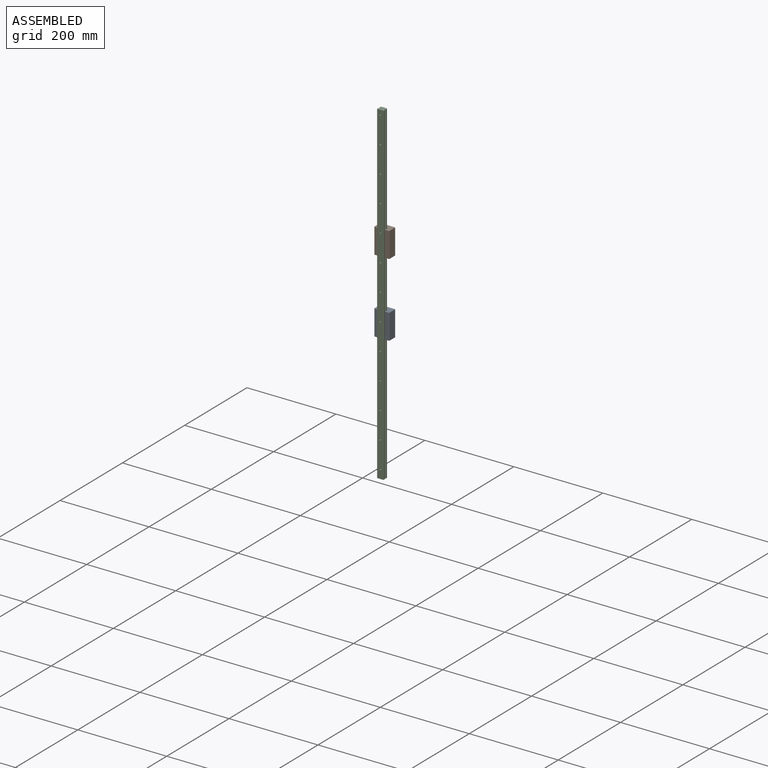
[diagram: assembled view]
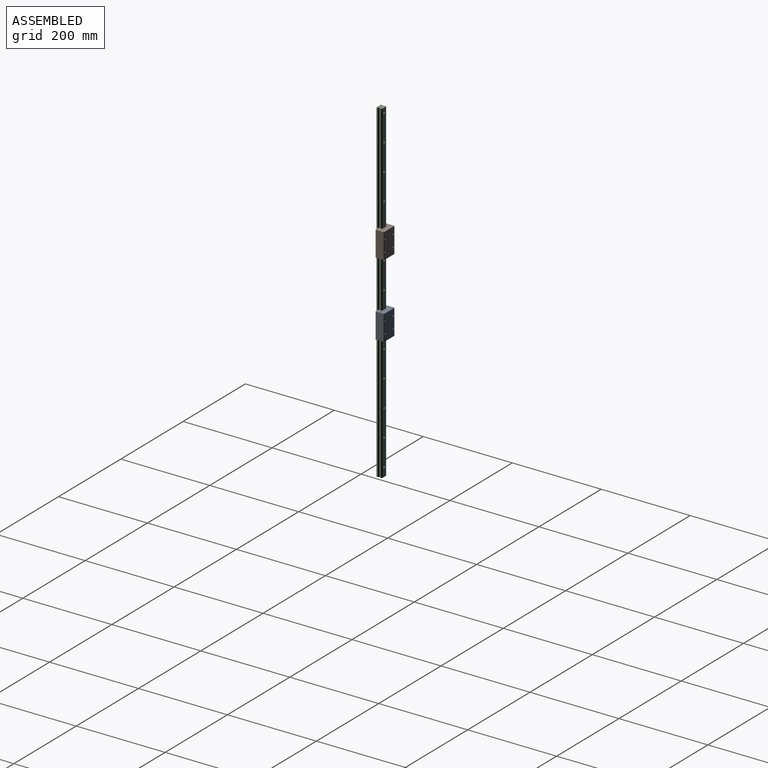
[diagram: assembled view, second angle]
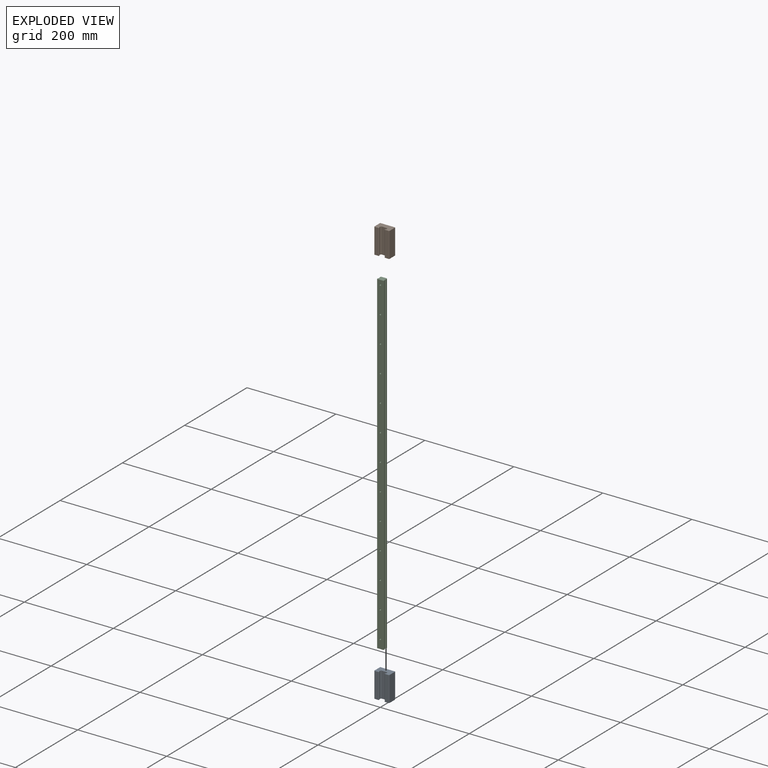
[diagram: exploded view]
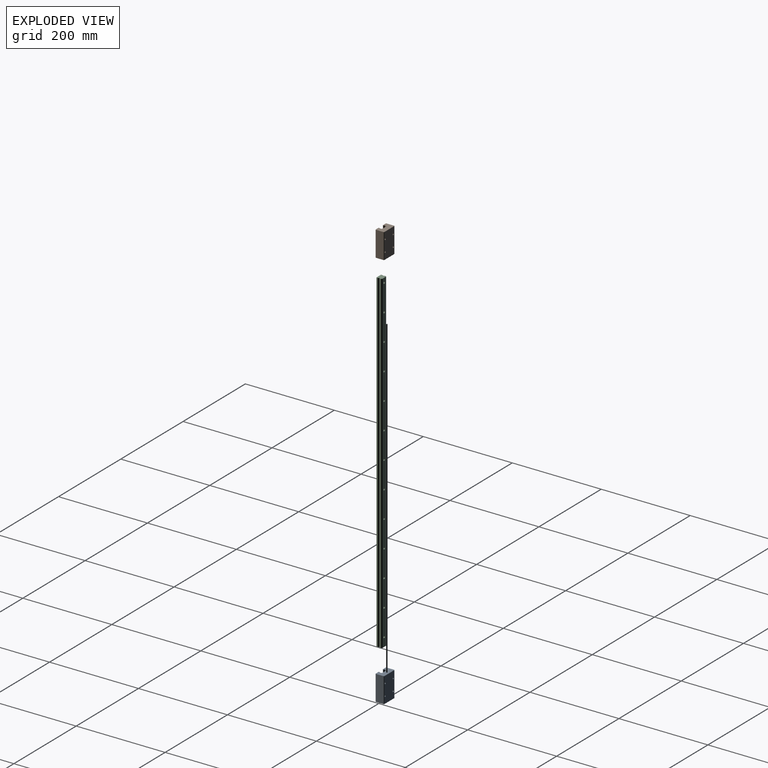
[diagram: exploded view, second angle]
ASSEMBLY  parts=3 mates=2
PART A: 37 faces, bbox 34x19.5x56.8 mm
  f0: cylinder r=1.25mm len=56.8mm, axis (0,0,-1), area 111.5mm2, adj f1,f22,f23,f24
  f1: plane 56.8x1.1mm, normal (0.71,0.71,0), area 88.2mm2, adj f0,f2,f23,f24
  f2: cylinder r=0.12mm len=56.8mm, axis (0,0,-1), area 5.4mm2, adj f1,f3,f23,f24
  f3: plane 56.8x3.04mm, normal (1,0,0), area 172.4mm2, adj f2,f4,f23,f24
  f4: plane 56.8x1.65mm, normal (0.71,-0.71,0), area 132.3mm2, adj f3,f5,f23,f24
  f5: plane 56.8x12.21mm, normal (0,-1,0), area 693.4mm2, adj f4,f6,f23,f24
  f6: plane 56.8x1.65mm, normal (-0.71,-0.71,0), area 132.3mm2, adj f5,f7,f23,f24
  f7: plane 56.8x3.04mm, normal (-1,0,0), area 172.4mm2, adj f6,f8,f23,f24
  f8: cylinder r=0.12mm len=56.8mm, axis (0,0,-1), area 5.4mm2, adj f7,f9,f23,f24
  f9: plane 56.8x1.1mm, normal (-0.71,0.71,0), area 88.2mm2, adj f8,f10,f23,f24
  f10: cylinder r=1.25mm len=56.8mm, axis (0,0,-1), area 111.5mm2, adj f9,f11,f23,f24
  f11: plane 56.8x0.59mm, normal (-0.71,-0.71,0), area 47.1mm2, adj f10,f12,f23,f24
  f12: cylinder r=1.5mm len=56.8mm, axis (0,0,-1), area 1.4mm2, adj f11,f13,f23,f24
  f13: plane 56.8x8.77mm, normal (0,-1,0), area 498.2mm2, adj f12,f14,f23,f24
  f14: cylinder r=1mm len=56.8mm, axis (0,0,-1), area 89.4mm2, adj f13,f15,f23,f24
  f15: plane 56.8x17.5mm, normal (1,0,0), area 993.9mm2, adj f14,f16,f23,f24
  f16: cylinder r=1mm len=56.8mm, axis (0,0,-1), area 89.2mm2, adj f15,f17,f23,f24
  f17: plane 56.8x32mm, normal (0,1,0), area 1772.8mm2, adj f16,f18,f23,f24,f33,f34,f35,f36
  f18: cylinder r=1mm len=56.8mm, axis (0,0,-1), area 89.2mm2, adj f17,f19,f23,f24
  f19: plane 56.8x17.5mm, normal (-1,0,0), area 994mm2, adj f18,f20,f23,f24
  f20: cylinder r=1mm len=56.8mm, axis (0,0,-1), area 89.2mm2, adj f19,f21,f23,f24
  f21: plane 56.8x8.77mm, normal (0,-1,0), area 498mm2, adj f20,f22,f23,f24
  f22: plane 56.8x0.62mm, normal (0.71,-0.71,0), area 49.5mm2, adj f0,f21,f23,f24
  f23: plane 34x19.5mm, normal (0,0,1), area 544.1mm2, adj f0,f1,f2,f3,f4,f5,f6,f7
  f24: plane 34x19.5mm, normal (0,0,-1), area 544.1mm2, adj f0,f1,f2,f3,f4,f5,f6,f7
  f25: cylinder r=1.6mm len=7.5mm, axis (0,1,0), area 75.4mm2, adj f26,f33
  f26: plane 3.2x3.2mm, normal (0,1,0), area 8mm2, adj f25
  f27: cylinder r=1.6mm len=7.5mm, axis (0,1,0), area 75.4mm2, adj f28,f34
  f28: plane 3.2x3.2mm, normal (0,1,0), area 8mm2, adj f27
  f29: cylinder r=1.6mm len=7.5mm, axis (0,1,0), area 75.4mm2, adj f30,f36
  f30: plane 3.2x3.2mm, normal (0,1,0), area 8mm2, adj f29
  f31: cylinder r=1.6mm len=7.5mm, axis (0,1,0), area 75.4mm2, adj f32,f35
  f32: plane 3.2x3.2mm, normal (0,1,0), area 8mm2, adj f31
  f33: cone r=1.6mm half-angle=30deg, axis (0,1,0), area 6.3mm2, adj f17,f25
  f34: cone r=1.6mm half-angle=30deg, axis (0,1,0), area 6.3mm2, adj f17,f27
  f35: cone r=1.6mm half-angle=30deg, axis (0,1,0), area 6.3mm2, adj f17,f31
  f36: cone r=1.6mm half-angle=30deg, axis (0,1,0), area 6.3mm2, adj f17,f29
PART B: same geometry as A
PART C: 65 faces, bbox 15x12.5x750 mm
  f0: cylinder r=1.75mm len=8mm, axis (0,1,0), area 88mm2, adj f21,f63
  f1: cylinder r=1.75mm len=8mm, axis (0,1,0), area 88mm2, adj f21,f61
  f2: cylinder r=1.75mm len=8mm, axis (0,1,0), area 88mm2, adj f21,f59
  f3: cylinder r=1.75mm len=8mm, axis (0,1,0), area 88mm2, adj f21,f57
  f4: cylinder r=1.75mm len=8mm, axis (0,1,0), area 88mm2, adj f21,f55
  f5: cylinder r=1.75mm len=8mm, axis (0,1,0), area 88mm2, adj f21,f53
  f6: cylinder r=1.75mm len=8mm, axis (0,1,0), area 88mm2, adj f21,f51
  f7: cylinder r=1.75mm len=8mm, axis (0,1,0), area 88mm2, adj f21,f49
  f8: cylinder r=1.75mm len=8mm, axis (0,1,0), area 88mm2, adj f21,f47
  f9: cylinder r=1.75mm len=8mm, axis (0,1,0), area 88mm2, adj f21,f45
  f10: cylinder r=1.75mm len=8mm, axis (0,1,0), area 88mm2, adj f21,f43
  f11: cylinder r=1.75mm len=8mm, axis (0,1,0), area 88mm2, adj f21,f41
  f12: cylinder r=1.75mm len=8mm, axis (0,1,0), area 88mm2, adj f21,f39
  f13: plane 750x2.53mm, normal (-1,0,0), area 1898.2mm2, adj f14,f36,f37,f38
  f14: cylinder r=0.12mm len=750mm, axis (0,0,-1), area 71.6mm2, adj f13,f15,f37,f38
  f15: plane 750x1.03mm, normal (-0.71,-0.71,0), area 1087.2mm2, adj f14,f16,f37,f38
  f16: cylinder r=1.5mm len=750mm, axis (0,0,-1), area 1767.1mm2, adj f15,f17,f37,f38
  f17: plane 750x1.03mm, normal (-0.71,0.71,0), area 1087.2mm2, adj f16,f18,f37,f38
  f18: cylinder r=0.12mm len=750mm, axis (0,0,-1), area 71.6mm2, adj f17,f19,f37,f38
  f19: plane 750x3.11mm, normal (-1,0,0), area 2332.8mm2, adj f18,f20,f37,f38
  f20: cylinder r=0.72mm len=750mm, axis (0,0,-1), area 845.8mm2, adj f19,f21,f37,f38
  f21: plane 750x13.56mm, normal (0,-1,0), area 10048.1mm2, adj f0,f1,f2,f3,f4,f5,f6,f7
  f22: cylinder r=0.72mm len=750mm, axis (0,0,-1), area 845.8mm2, adj f21,f23,f37,f38
  f23: plane 750x3.11mm, normal (1,0,0), area 2332.8mm2, adj f22,f24,f37,f38
  f24: cylinder r=0.12mm len=750mm, axis (0,0,-1), area 71.6mm2, adj f23,f25,f37,f38
  f25: plane 750x1.03mm, normal (0.71,0.71,0), area 1087.2mm2, adj f24,f26,f37,f38
  f26: cylinder r=1.5mm len=750mm, axis (0,0,-1), area 1767.1mm2, adj f25,f27,f37,f38
  f27: plane 750x1.03mm, normal (0.71,-0.71,0), area 1087.2mm2, adj f26,f28,f37,f38
  f28: cylinder r=0.12mm len=750mm, axis (0,0,-1), area 71.6mm2, adj f27,f29,f37,f38
  f29: plane 750x2.53mm, normal (1,0,0), area 1898.2mm2, adj f28,f30,f37,f38
  f30: cylinder r=0.72mm len=750mm, axis (0,0,-1), area 422.9mm2, adj f29,f31,f37,f38
  f31: plane 750x1.08mm, normal (0.71,0.71,0), area 1144.9mm2, adj f30,f32,f37,f38
  f32: cylinder r=0.72mm len=750mm, axis (0,0,-1), area 422.9mm2, adj f31,f33,f37,f38
  f33: plane 750x11.41mm, normal (0,1,0), area 8347.2mm2, adj f32,f34,f37,f38,f40,f42,f44,f46
  f34: cylinder r=0.72mm len=750mm, axis (0,0,-1), area 422.9mm2, adj f33,f35,f37,f38
  f35: plane 750x1.08mm, normal (-0.71,0.71,0), area 1144.9mm2, adj f34,f36,f37,f38
  f36: cylinder r=0.72mm len=750mm, axis (0,0,-1), area 422.9mm2, adj f13,f35,f37,f38
  f37: plane 15x12.5mm, normal (0,0,1), area 176.9mm2, adj f13,f14,f15,f16,f17,f18,f19,f20
  f38: plane 15x12.5mm, normal (0,0,-1), area 176.9mm2, adj f13,f14,f15,f16,f17,f18,f19,f20
  f39: plane 4.5x4.5mm, normal (0,1,0), area 6.3mm2, adj f12,f40
  f40: cylinder r=2.25mm len=4.5mm, axis (0,1,0), area 63.6mm2, adj f33,f39
  f41: plane 4.5x4.5mm, normal (0,1,0), area 6.3mm2, adj f11,f42
  f42: cylinder r=2.25mm len=4.5mm, axis (0,1,0), area 63.6mm2, adj f33,f41
  f43: plane 4.5x4.5mm, normal (0,1,0), area 6.3mm2, adj f10,f44
  f44: cylinder r=2.25mm len=4.5mm, axis (0,1,0), area 63.6mm2, adj f33,f43
  f45: plane 4.5x4.5mm, normal (0,1,0), area 6.3mm2, adj f9,f46
  f46: cylinder r=2.25mm len=4.5mm, axis (0,1,0), area 63.6mm2, adj f33,f45
  f47: plane 4.5x4.5mm, normal (0,1,0), area 6.3mm2, adj f8,f48
  f48: cylinder r=2.25mm len=4.5mm, axis (0,1,0), area 63.6mm2, adj f33,f47
  f49: plane 4.5x4.5mm, normal (0,1,0), area 6.3mm2, adj f7,f50
  f50: cylinder r=2.25mm len=4.5mm, axis (0,1,0), area 63.6mm2, adj f33,f49
  f51: plane 4.5x4.5mm, normal (0,1,0), area 6.3mm2, adj f6,f52
  f52: cylinder r=2.25mm len=4.5mm, axis (0,1,0), area 63.6mm2, adj f33,f51
  f53: plane 4.5x4.5mm, normal (0,1,0), area 6.3mm2, adj f5,f54
  f54: cylinder r=2.25mm len=4.5mm, axis (0,1,0), area 63.6mm2, adj f33,f53
  f55: plane 4.5x4.5mm, normal (0,1,0), area 6.3mm2, adj f4,f56
  f56: cylinder r=2.25mm len=4.5mm, axis (0,1,0), area 63.6mm2, adj f33,f55
  f57: plane 4.5x4.5mm, normal (0,1,0), area 6.3mm2, adj f3,f58
  f58: cylinder r=2.25mm len=4.5mm, axis (0,1,0), area 63.6mm2, adj f33,f57
  f59: plane 4.5x4.5mm, normal (0,1,0), area 6.3mm2, adj f2,f60
  f60: cylinder r=2.25mm len=4.5mm, axis (0,1,0), area 63.6mm2, adj f33,f59
  f61: plane 4.5x4.5mm, normal (0,1,0), area 6.3mm2, adj f1,f62
  f62: cylinder r=2.25mm len=4.5mm, axis (0,1,0), area 63.6mm2, adj f33,f61
  f63: plane 4.5x4.5mm, normal (0,1,0), area 6.3mm2, adj f0,f64
  f64: cylinder r=2.25mm len=4.5mm, axis (0,1,0), area 63.6mm2, adj f33,f63
PLACE A t=(0,0,283.44)mm
PLACE B t=(0,0,449.67)mm
PLACE C at identity fixed
MATE slider C.f37 <-> B.f23  axis (0,0,1) through (0,12.5,750)mm
MATE slider A.f24 <-> C.f38  axis (0,0,-1) through (0,12.75,283.44)mm
